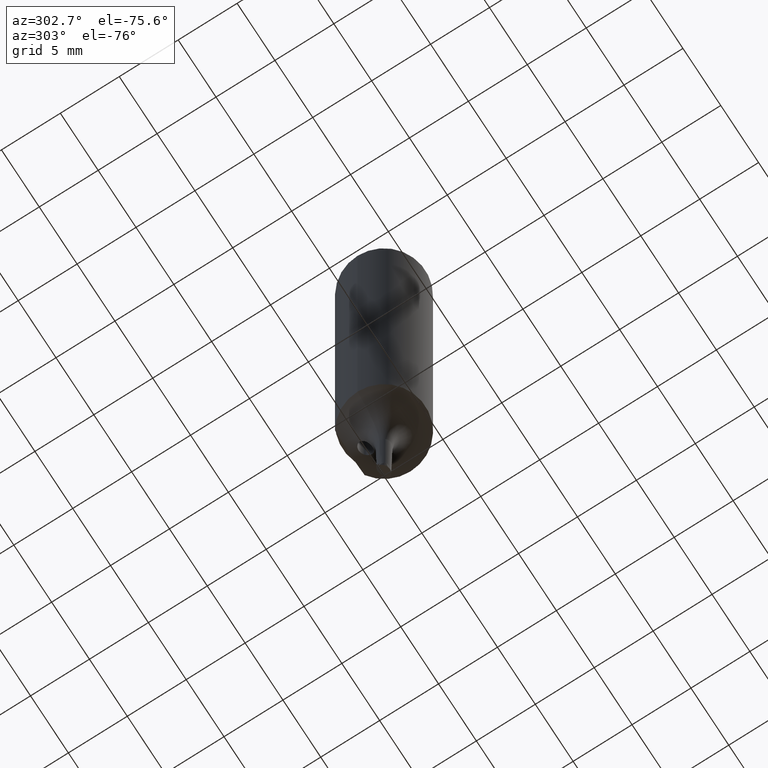
[diagram: clean part render]
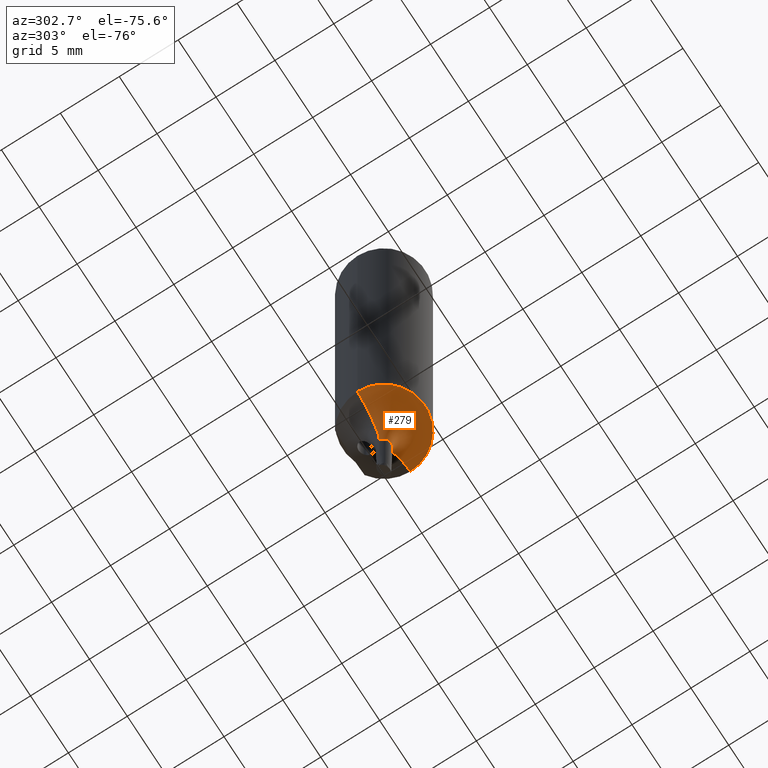
[diagram: same view with one face highlighted and labeled with its STEP entity id]
A machine part, auxiliary view. The second image highlights one B-rep face of the part: STEP entity #279.
In plain terms, the highlighted toroidal blend (fillet) surface has major radius 5.6059 mm and minor (blend) radius 5 mm.
Its self-contained STEP definition (entity closure, byte-faithful):
#155=VERTEX_POINT('NONE',#427);
#163=EDGE_CURVE('NONE',#155,#177,#437,.T.);
#177=VERTEX_POINT('NONE',#451);
#199=EDGE_CURVE('NONE',#177,#371,#475,.F.);
#263=EDGE_CURVE('NONE',#315,#371,#549,.T.);
#279=ADVANCED_FACE('NONE',(#567),#568,.F.);
#285=EDGE_CURVE('NONE',#155,#315,#574,.T.);
#315=VERTEX_POINT('NONE',#605);
#371=VERTEX_POINT('NONE',#666);
#427=CARTESIAN_POINT('',(-3.5,1.26488039877207E-014,-39.3));
#437=CIRCLE('',#728,5.0);
#451=CARTESIAN_POINT('',(-0.606201534117828,2.19077839488913E-015,-43.7757636492398));
#475=CIRCLE('',#811,0.606201534117829);
#549=CIRCLE('',#1045,5.0);
#567=FACE_OUTER_BOUND('',#1071,.T.);
#568=TOROIDAL_SURFACE('',#1072,5.60585171910735,5.0);
#574=CIRCLE('',#1080,3.5);
#605=CARTESIAN_POINT('',(3.5,-1.22201917638828E-014,-39.3));
#666=CARTESIAN_POINT('',(0.606201534117828,-2.11654256985138E-015,-43.7757636492398));
#728=AXIS2_PLACEMENT_3D('',#1388,#1389,#1390);
#811=AXIS2_PLACEMENT_3D('',#1420,#1421,#1422);
#1045=AXIS2_PLACEMENT_3D('',#1508,#1509,#1510);
#1071=EDGE_LOOP('',(#1540,#1541,#1542,#1543));
#1072=AXIS2_PLACEMENT_3D('',#1544,#1545,#1546);
#1080=AXIS2_PLACEMENT_3D('',#1550,#1551,#1552);
#1388=CARTESIAN_POINT('',(-5.60585171910735,2.02592341654902E-014,-43.8349077760339));
#1389=DIRECTION('',(3.61394399649162E-015,1.0,0.0));
#1390=DIRECTION('',(1.0,-3.61394399649162E-015,-0.0));
#1420=CARTESIAN_POINT('',(0.0,0.0,-43.7757636492398));
#1421=DIRECTION('',(0.0,0.0,-1.0));
#1422=DIRECTION('',(1.0,-3.49148336110938E-015,0.0));
#1508=CARTESIAN_POINT('',(5.60585171910735,-1.95727380021097E-014,-43.8349077760339));
#1509=DIRECTION('',(-3.49148336110938E-015,-1.0,0.0));
#1510=DIRECTION('',(-1.0,3.49148336110938E-015,0.0));
#1540=ORIENTED_EDGE('',*,*,#285,.F.);
#1541=ORIENTED_EDGE('',*,*,#163,.T.);
#1542=ORIENTED_EDGE('',*,*,#199,.T.);
#1543=ORIENTED_EDGE('',*,*,#263,.F.);
#1544=CARTESIAN_POINT('',(0.0,0.0,-43.8349077760339));
#1545=DIRECTION('',(0.0,0.0,1.0));
#1546=DIRECTION('',(1.0,-3.49148336110938E-015,-0.0));
#1550=CARTESIAN_POINT('',(0.0,0.0,-39.3));
#1551=DIRECTION('',(0.0,-0.0,1.0));
#1552=DIRECTION('',(1.0,-3.49148336110938E-015,-0.0));